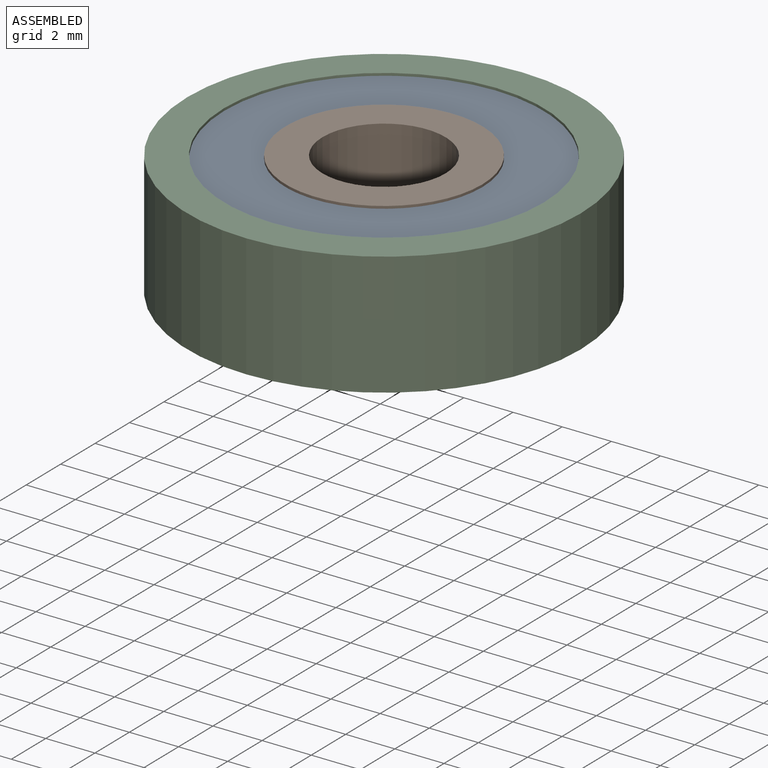
[diagram: assembled view]
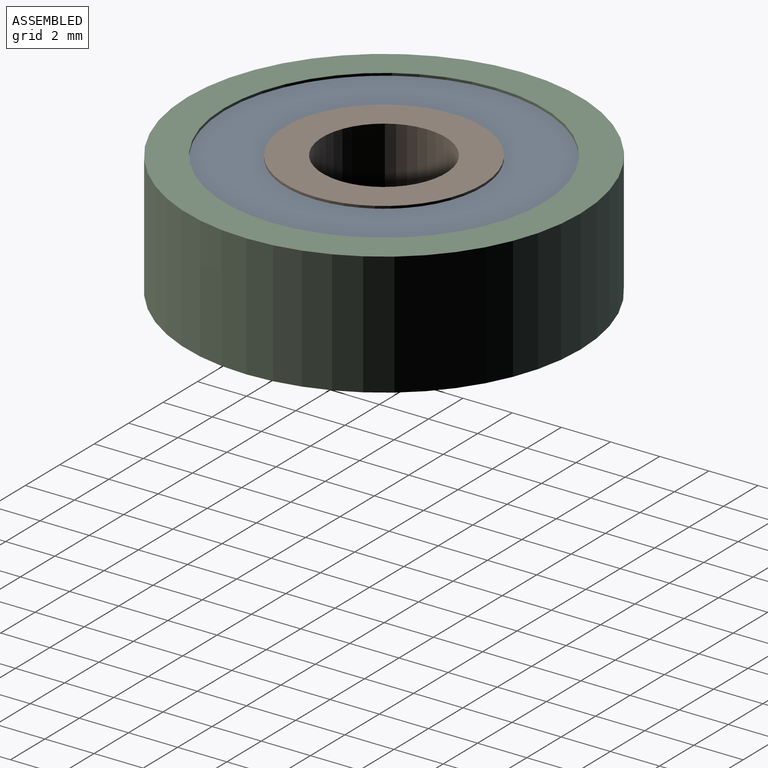
[diagram: assembled view, second angle]
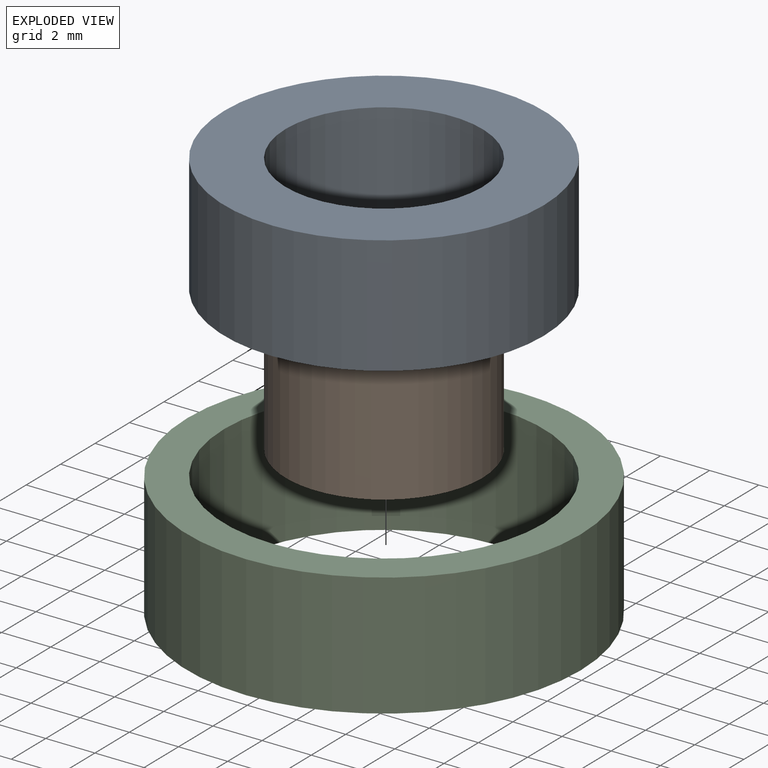
[diagram: exploded view]
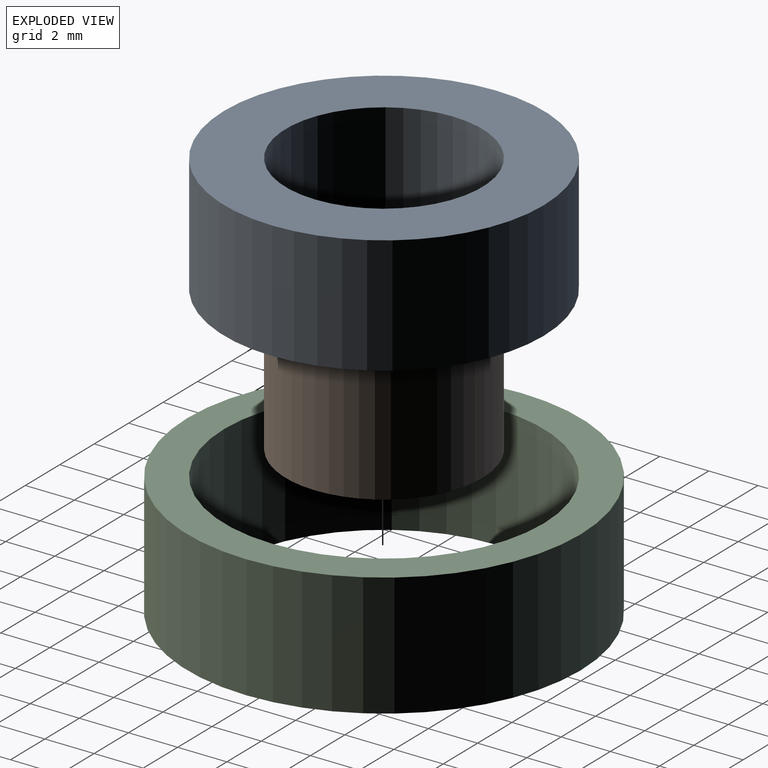
[diagram: exploded view, second angle]
ASSEMBLY  parts=3 mates=2
PART A: 4 faces, bbox 13x13x4.8 mm
  f0: cylinder r=4mm len=8mm, axis (0,0,1), area 120.6mm2, adj f2,f3
  f1: cylinder r=6.5mm len=13mm, axis (0,0,1), area 196mm2, adj f2,f3
  f2: plane 13x13mm, normal (0,0,-1), area 82.5mm2, adj f0,f1
  f3: plane 13x13mm, normal (0,0,1), area 82.5mm2, adj f0,f1
PART B: 4 faces, bbox 8x8x5 mm
  f0: plane 8x8mm, normal (0,0,1), area 30.6mm2, adj f2,f3
  f1: plane 8x8mm, normal (0,0,-1), area 30.6mm2, adj f2,f3
  f2: cylinder r=2.5mm len=5mm, axis (0,0,-1), area 78.5mm2, adj f0,f1
  f3: cylinder r=4mm len=8mm, axis (0,0,1), area 125.7mm2, adj f0,f1
PART C: 4 faces, bbox 16x16x5 mm
  f0: plane 16x16mm, normal (0,0,1), area 68.3mm2, adj f1,f3
  f1: cylinder r=8mm len=16mm, axis (0,0,-1), area 251.3mm2, adj f0,f2
  f2: plane 16x16mm, normal (0,0,-1), area 68.3mm2, adj f1,f3
  f3: cylinder r=6.5mm len=13mm, axis (0,0,1), area 204.2mm2, adj f0,f2
PLACE A t=(7.98,7.98,2.56)mm
PLACE B t=(7.98,7.98,2.56)mm
PLACE C t=(7.98,7.98,2.56)mm
MATE fastened C.f3 <-> A.f1  axis (0,0,1) through (7.98,7.98,5.06)mm
MATE revolute A.f0 <-> B.f3  axis (0,0,1) through (7.98,7.98,5.06)mm
